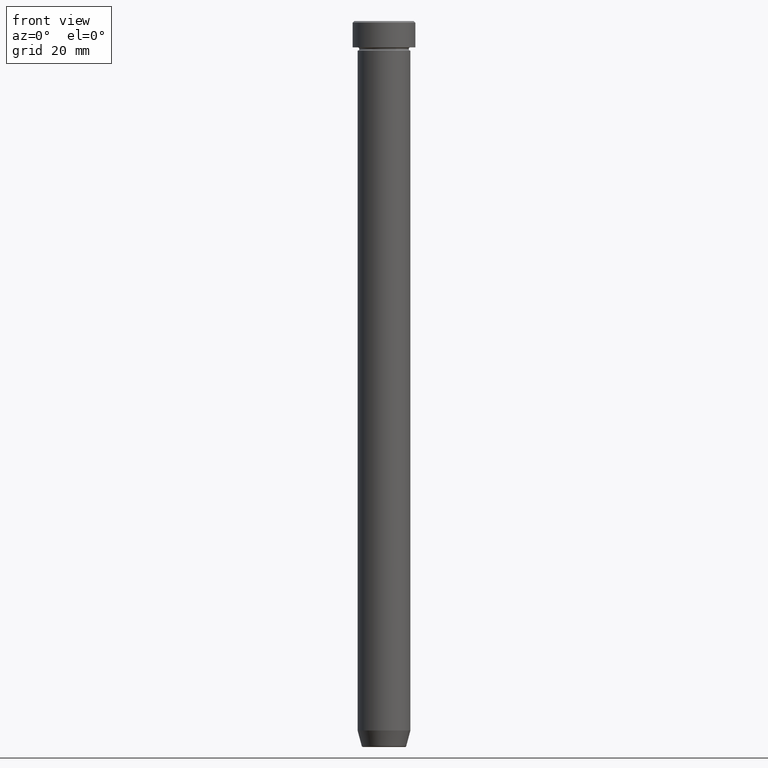
[diagram: clean part render]
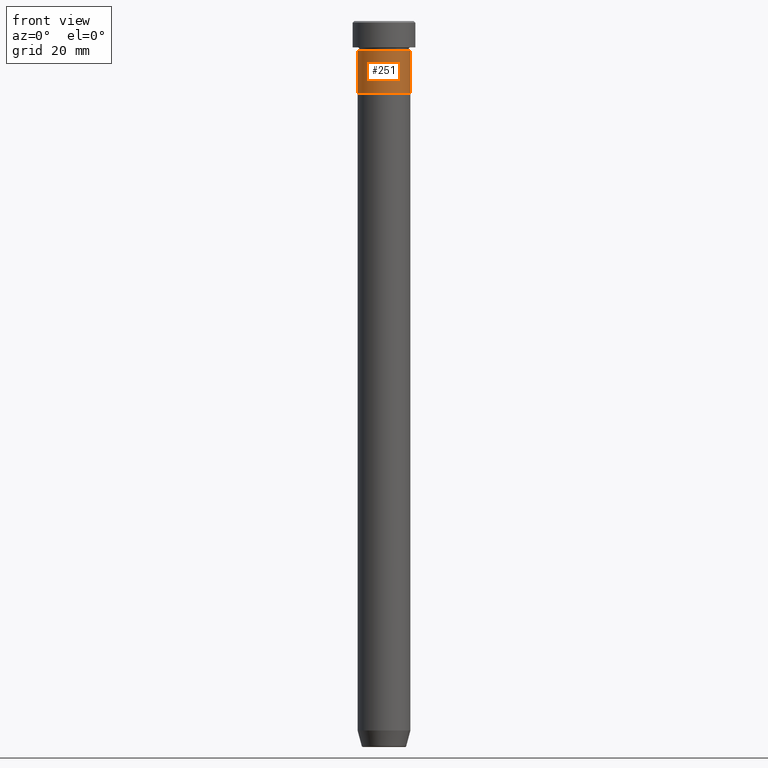
[diagram: same view with one face highlighted and labeled with its STEP entity id]
A machine part, front view. The second image highlights one B-rep face of the part: STEP entity #251.
In plain terms, the highlighted cylindrical surface (edge-blend (fillet) strip) has radius 8 mm, axis along (-0, -0, 1).
Its self-contained STEP definition (entity closure, byte-faithful):
#7 = CARTESIAN_POINT ( 'NONE',  ( 0.000000000000000000, 0.000000000000000000, 0.000000000000000000 ) ) ;
#11 = AXIS2_PLACEMENT_3D ( 'NONE', #529, #24, #266 ) ;
#24 = DIRECTION ( 'NONE',  ( -0.000000000000000000, -0.000000000000000000, 1.000000000000000000 ) ) ;
#87 = CARTESIAN_POINT ( 'NONE',  ( 8.000000000000000000, 0.000000000000000000, 0.000000000000000000 ) ) ;
#98 = CYLINDRICAL_SURFACE ( 'NONE', #554, 8.000000000000000000 ) ;
#106 = CARTESIAN_POINT ( 'NONE',  ( 8.000000000000000000, 0.000000000000000000, -22.00000000000000000 ) ) ;
#113 = EDGE_CURVE ( 'NONE', #535, #435, #211, .T. ) ;
#155 = ORIENTED_EDGE ( 'NONE', *, *, #468, .F. ) ;
#197 = DIRECTION ( 'NONE',  ( -0.000000000000000000, -0.000000000000000000, 1.000000000000000000 ) ) ;
#199 = DIRECTION ( 'NONE',  ( -0.000000000000000000, -0.000000000000000000, 1.000000000000000000 ) ) ;
#206 = EDGE_LOOP ( 'NONE', ( #546, #488, #366, #155 ) ) ;
#211 = LINE ( 'NONE', #87, #319 ) ;
#241 = EDGE_CURVE ( 'NONE', #278, #359, #424, .T. ) ;
#249 = CARTESIAN_POINT ( 'NONE',  ( 0.000000000000000000, 0.000000000000000000, -22.00000000000000000 ) ) ;
#251 = ADVANCED_FACE ( 'NONE', ( #511 ), #98, .T. ) ;
#252 = DIRECTION ( 'NONE',  ( -0.000000000000000000, -0.000000000000000000, 1.000000000000000000 ) ) ;
#266 = DIRECTION ( 'NONE',  ( 1.000000000000000000, 0.000000000000000000, 0.000000000000000000 ) ) ;
#278 = VERTEX_POINT ( 'NONE', #560 ) ;
#292 = EDGE_CURVE ( 'NONE', #278, #535, #336, .T. ) ;
#319 = VECTOR ( 'NONE', #512, 1000.000000000000000 ) ;
#336 = CIRCLE ( 'NONE', #422, 8.000000000000000000 ) ;
#339 = CARTESIAN_POINT ( 'NONE',  ( -8.000000000000000000, 9.797174393178825657E-16, 0.000000000000000000 ) ) ;
#340 = CIRCLE ( 'NONE', #11, 8.000000000000000000 ) ;
#359 = VERTEX_POINT ( 'NONE', #379 ) ;
#366 = ORIENTED_EDGE ( 'NONE', *, *, #113, .T. ) ;
#379 = CARTESIAN_POINT ( 'NONE',  ( -8.000000000000000000, 9.797174393178825657E-16, -9.000000000000001776 ) ) ;
#422 = AXIS2_PLACEMENT_3D ( 'NONE', #249, #197, #557 ) ;
#424 = LINE ( 'NONE', #339, #585 ) ;
#435 = VERTEX_POINT ( 'NONE', #470 ) ;
#468 = EDGE_CURVE ( 'NONE', #359, #435, #340, .T. ) ;
#470 = CARTESIAN_POINT ( 'NONE',  ( 8.000000000000000000, 0.000000000000000000, -9.000000000000001776 ) ) ;
#488 = ORIENTED_EDGE ( 'NONE', *, *, #292, .T. ) ;
#511 = FACE_OUTER_BOUND ( 'NONE', #206, .T. ) ;
#512 = DIRECTION ( 'NONE',  ( -0.000000000000000000, -0.000000000000000000, 1.000000000000000000 ) ) ;
#529 = CARTESIAN_POINT ( 'NONE',  ( 0.000000000000000000, 0.000000000000000000, -9.000000000000001776 ) ) ;
#535 = VERTEX_POINT ( 'NONE', #106 ) ;
#546 = ORIENTED_EDGE ( 'NONE', *, *, #241, .F. ) ;
#551 = DIRECTION ( 'NONE',  ( 1.000000000000000000, 0.000000000000000000, 0.000000000000000000 ) ) ;
#554 = AXIS2_PLACEMENT_3D ( 'NONE', #7, #199, #551 ) ;
#557 = DIRECTION ( 'NONE',  ( 1.000000000000000000, 0.000000000000000000, 0.000000000000000000 ) ) ;
#560 = CARTESIAN_POINT ( 'NONE',  ( -8.000000000000000000, 9.797174393178825657E-16, -22.00000000000000000 ) ) ;
#585 = VECTOR ( 'NONE', #252, 1000.000000000000000 ) ;